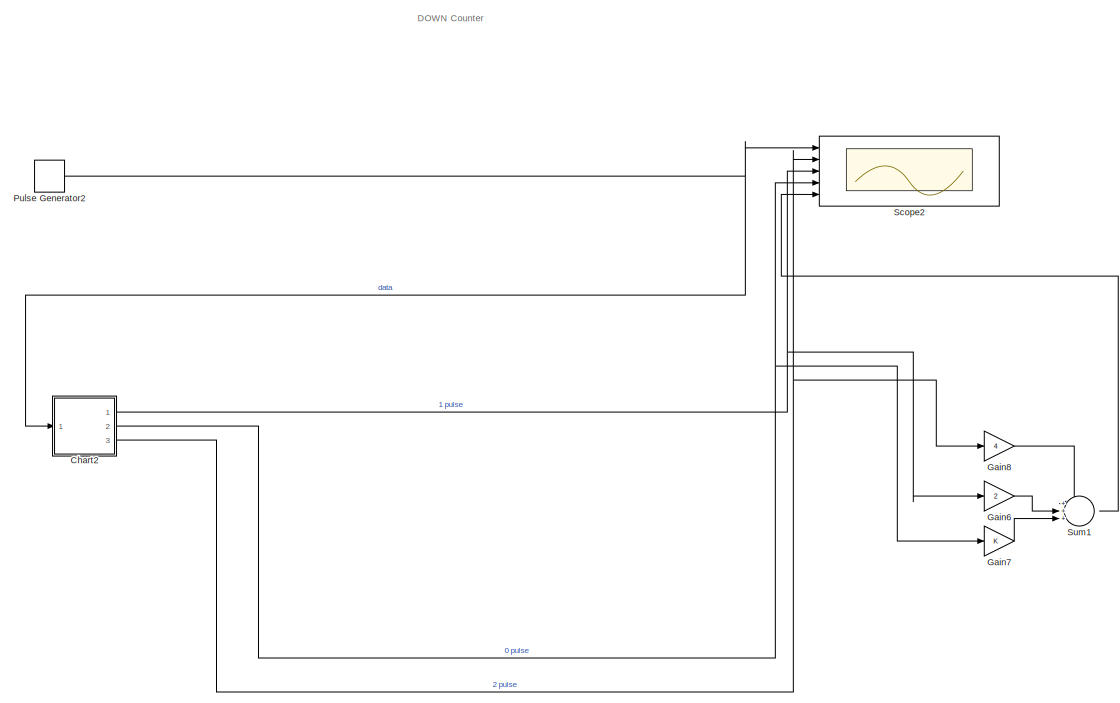
[diagram: root canvas - part 1/2, right side, full height]
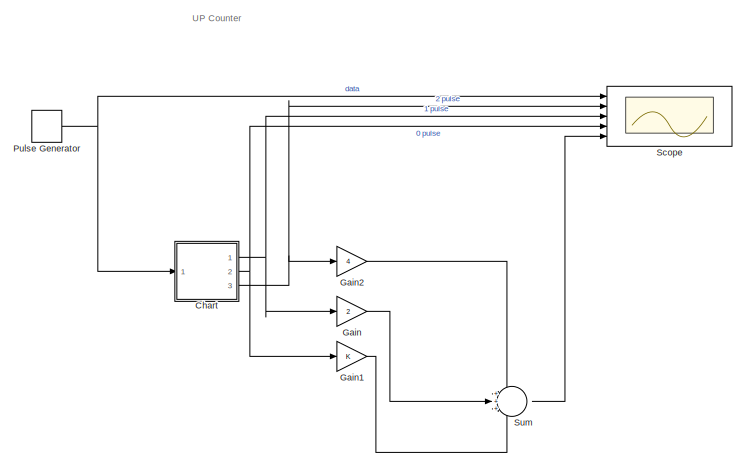
[diagram: root canvas - part 2/2, middle left region]
MODEL slx_2d4d5f06de18
KIND model
CONFIG AbsTol = auto
CONFIG EnableMultiTasking = off
CONFIG FixedStep = auto
CONFIG MaxStep = auto
CONFIG MinStep = auto
CONFIG RelTol = 1e-3
CONFIG SampleTimeConstraint = Unconstrained
CONFIG SolverName = VariableStepAuto
CONFIG StartTime = 0.0
CONFIG StopTime = 60.0
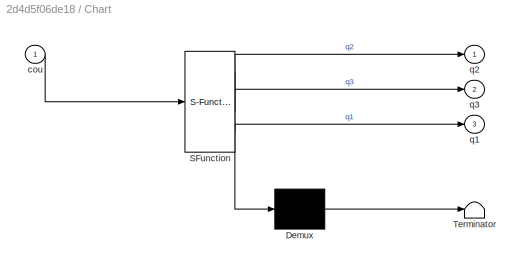
BLOCK [SubSystem] Chart
  ErrorFcn = Stateflow.Translate.translate
  PermitHierarchicalResolution = ExplicitOnly
  Ports = [1, 3]
  RequestExecContextInheritance = off
  SFBlockType = Chart
  TreatAsAtomicUnit = on
BLOCK [Demux] Chart/ Demux 
  Outputs = 1
  Ports = [1, 1]
BLOCK [S-Function] Chart/ SFunction 
  EnableBusSupport = on
  FunctionName = sf_sfun
  PortCounts = [1 4]
  Ports = [1, 4]
  SFcnIsStateOwnerBlock = off
  SFunctionDeploymentMode = off
  Tag = Stateflow S-Function 3
BLOCK [Terminator] Chart/ Terminator 
BLOCK [Inport] Chart/cou
BLOCK [Outport] Chart/q1
  Port = 3
BLOCK [Outport] Chart/q2
BLOCK [Outport] Chart/q3
  Port = 2
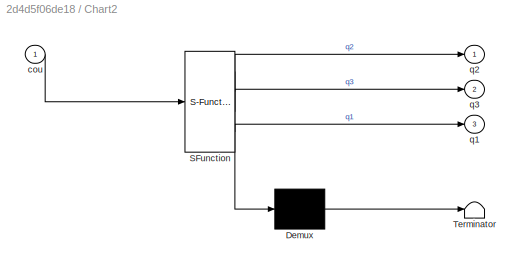
BLOCK [SubSystem] Chart2
  ErrorFcn = Stateflow.Translate.translate
  PermitHierarchicalResolution = ExplicitOnly
  Ports = [1, 3]
  RequestExecContextInheritance = off
  SFBlockType = Chart
  TreatAsAtomicUnit = on
BLOCK [Demux] Chart2/ Demux 
  Outputs = 1
  Ports = [1, 1]
BLOCK [S-Function] Chart2/ SFunction 
  EnableBusSupport = on
  FunctionName = sf_sfun
  PortCounts = [1 4]
  Ports = [1, 4]
  SFcnIsStateOwnerBlock = off
  SFunctionDeploymentMode = off
  Tag = Stateflow S-Function 2
BLOCK [Terminator] Chart2/ Terminator 
BLOCK [Inport] Chart2/cou
BLOCK [Outport] Chart2/q1
  Port = 3
BLOCK [Outport] Chart2/q2
BLOCK [Outport] Chart2/q3
  Port = 2
BLOCK [Gain] Gain
  Gain = 2
BLOCK [Gain] Gain1
BLOCK [Gain] Gain2
  Gain = 4
BLOCK [Gain] Gain6
  Gain = 2
BLOCK [Gain] Gain7
BLOCK [Gain] Gain8
  Gain = 4
BLOCK [DiscretePulseGenerator] Pulse Generator
  Period = 10
  Ports = [0, 1]
  PulseType = Time based
  PulseWidth = 50
BLOCK [DiscretePulseGenerator] Pulse Generator2
  Period = 10
  Ports = [0, 1]
  PulseType = Time based
  PulseWidth = 50
BLOCK [Scope] Scope
  Floating = off
  NumInputPorts = 5
  Ports = [5]
  ScopeSpecificationString = Simulink.scopes.TimeScopeBlockCfg('CurrentConfiguration', extmgr.ConfigurationSet(extmgr.Configuration('Core','General UI',true),extmgr.Configuration('Core','Source UI',true),extmgr.Configuration('Sources','WiredSimulink',true,'DataLoggingVariableName','ScopeData1'),extmgr.Configuration('Visuals','Time Domain',true,'SerializedDisplays',{struct('MinYLimReal','-0.125','MaxYLimReal','1.125','YLabelRe...<+6145ch>
BLOCK [Scope] Scope2
  Floating = off
  NumInputPorts = 5
  Ports = [5]
  ScopeSpecificationString = Simulink.scopes.TimeScopeBlockCfg('CurrentConfiguration', extmgr.ConfigurationSet(extmgr.Configuration('Core','General UI',true),extmgr.Configuration('Core','Source UI',true),extmgr.Configuration('Sources','WiredSimulink',true,'DataLoggingVariableName','ScopeData2'),extmgr.Configuration('Visuals','Time Domain',true,'SerializedDisplays',{struct('MinYLimReal','-0.125','MaxYLimReal','1.125','YLabelRe...<+4793ch>
BLOCK [Sum] Sum
  Inputs = +++
  Ports = [3, 1]
BLOCK [Sum] Sum1
  Inputs = +++
  Ports = [3, 1]
ANNOTATION (root): DOWN Counter
ANNOTATION (root): UP Counter
NET Chart2:1 -> Gain6:1, Scope2:3
NET Chart2:2 -> Gain7:1, Scope2:4
NET Chart2:3 -> Gain8:1, Scope2:2
NET Chart:1 -> Gain:1, Scope:3
NET Chart:2 -> Gain1:1, Scope:4
NET Chart:3 -> Gain2:1, Scope:2
LINE Gain1:1 -> Sum:3
LINE Gain2:1 -> Sum:1
LINE Gain6:1 -> Sum1:2
LINE Gain7:1 -> Sum1:3
LINE Gain8:1 -> Sum1:1
LINE Gain:1 -> Sum:2
NET Pulse Generator2:1 -> Chart2:1, Scope2:1
NET Pulse Generator:1 -> Chart:1, Scope:1
LINE Sum1:1 -> Scope2:5
LINE Sum:1 -> Scope:5
note: NET lines group one-source signal fan-out (src -> all destinations, sorted); 1:1 wires keep LINE
CHART Chart2 states=10 transitions=11
  STATE_LABEL 'a_case1\nentry:\nq1=0;\nq2=0;\nq3=0;'
  STATE_LABEL 'a_case5\nentry:\nq1=1;\nq2=0;\nq3=0;'
  STATE_LABEL '\nentry_\nq1=0;\nq2=0;\nq3=0;'
  STATE_LABEL '\nentry_1\nq1=0;\nq2=0;\nq3=1;'
  STATE_LABEL 'a_case2\nentry:\nq1=0;\nq2=0;\nq3=1;'
  STATE_LABEL '\nentry_4\nq1=1;\nq2=0;\nq3=0;'
  STATE_LABEL '\nentry_2\nq1=0;\nq2=1;\nq3=0;'
  STATE_LABEL 'a_case4\nentry:\nq1=0;\nq2=1;\nq3=1;'
  STATE_LABEL 'a_case3\nentry:\nq1=0;\nq2=1;\nq3=0;'
  STATE_LABEL '\nentry_3\nq1=0;\nq2=1;\nq3=1;'
CHART Chart states=10 transitions=11
  STATE_LABEL 'a_case1\nentry:\nq1=0;\nq2=0;\nq3=0;'
  STATE_LABEL '\nentry_\nq1=0;\nq2=0;\nq3=0;'
  STATE_LABEL 'a_case5\nentry:\nq1=1;\nq2=0;\nq3=0;'
  STATE_LABEL '\nentry_1\nq1=0;\nq2=0;\nq3=1;'
  STATE_LABEL 'a_case2\nentry:\nq1=0;\nq2=0;\nq3=1;'
  STATE_LABEL '\nentry_4\nq1=1;\nq2=0;\nq3=0;'
  STATE_LABEL '\nentry_2\nq1=0;\nq2=1;\nq3=0;'
  STATE_LABEL 'a_case4\nentry:\nq1=0;\nq2=1;\nq3=1;'
  STATE_LABEL '\nentry_3\nq1=0;\nq2=1;\nq3=1;'
  STATE_LABEL 'a_case3\nentry:\nq1=0;\nq2=1;\nq3=0;'
CHART  states=0 transitions=0
CHART  states=0 transitions=0
